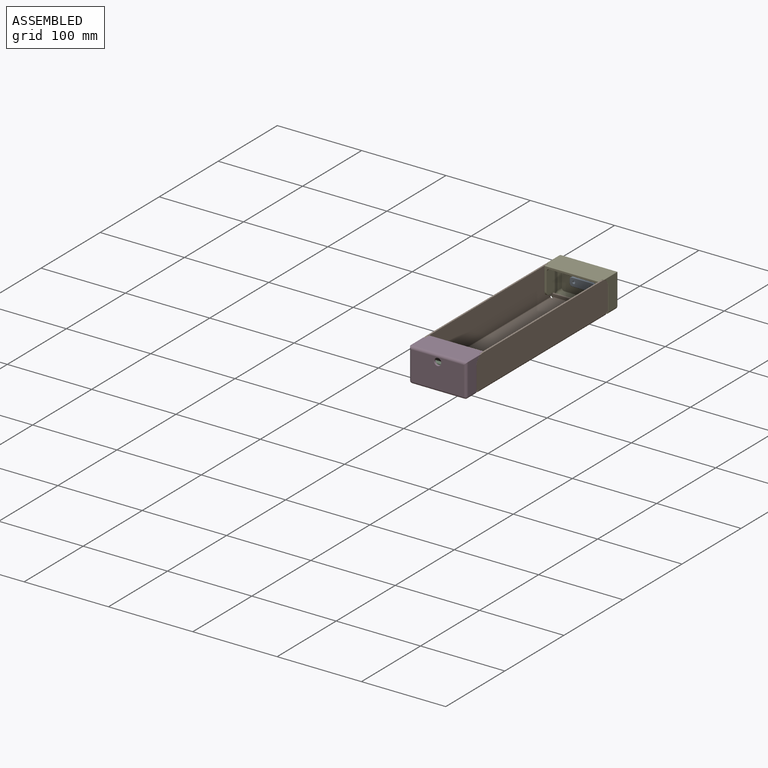
[diagram: assembled view]
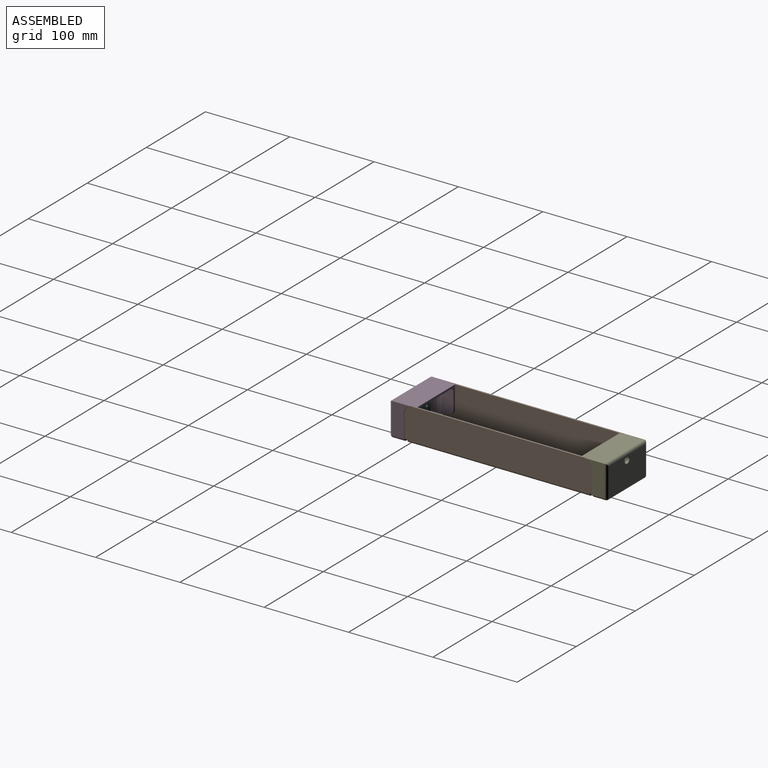
[diagram: assembled view, second angle]
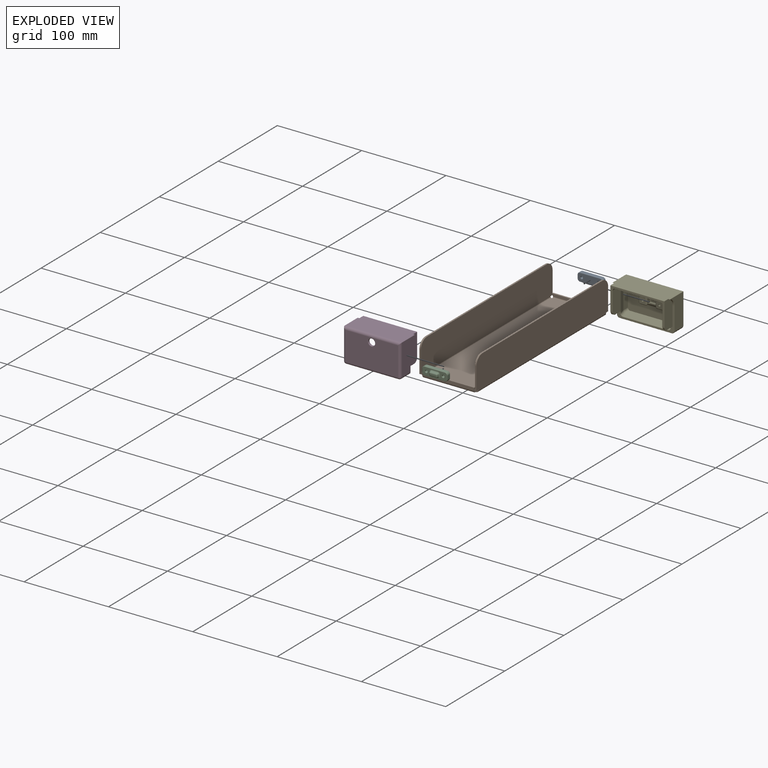
[diagram: exploded view]
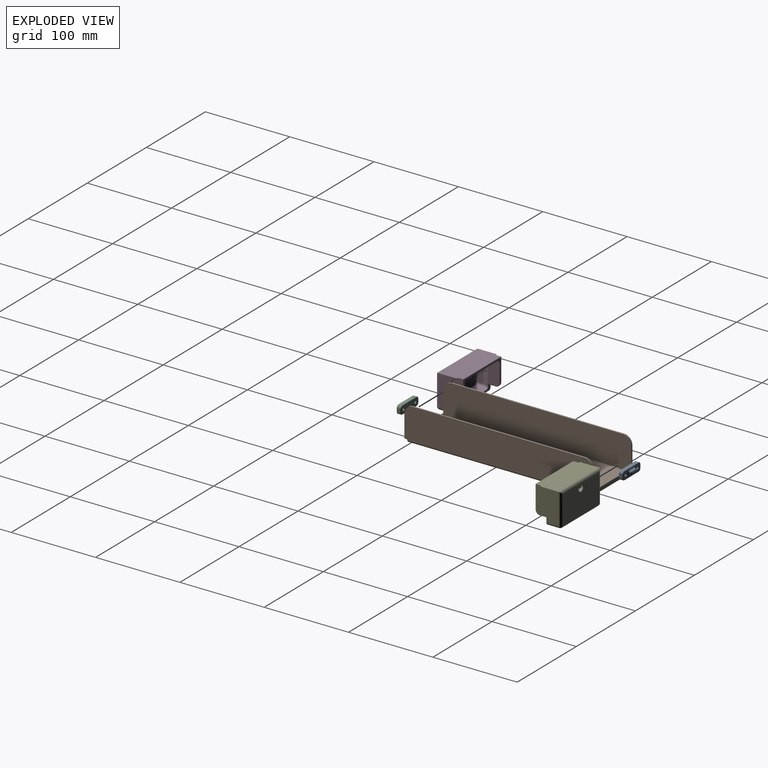
[diagram: exploded view, second angle]
ASSEMBLY  parts=5 mates=4
PART A: 49 faces, bbox 30.5x8x10.5 mm
  f0: plane 29x9mm, normal (0,1,0), area 145.5mm2, adj f9,f11,f24,f25,f26,f27,f28,f29
  f1: plane 4x4mm, normal (1,0,0), area 16mm2, adj f12,f13,f22,f29
  f2: plane 24x4mm, normal (0,0,1), area 96mm2, adj f13,f14,f18,f25
  f3: plane 4x4mm, normal (-1,0,0), area 16mm2, adj f14,f15,f17,f26
  f4: plane 24x4mm, normal (0,0,-1), area 96mm2, adj f12,f15,f21,f30
  f5: plane 29x9mm, normal (0,-1,0), area 235.3mm2, adj f8,f10,f16,f17,f18,f19,f20,f21
  f6: cylinder r=1.5mm len=4.4mm, axis (0,1,0), area 41.5mm2, adj f10,f11
  f7: cylinder r=1.5mm len=4.4mm, axis (0,1,0), area 41.5mm2, adj f8,f9
  f8: torus R=1.8mm, axis (0,-1,0), area 4.8mm2, adj f5,f7
  f9: torus R=1.8mm, axis (0,-1,0), area 4.8mm2, adj f0,f7
  f10: torus R=1.8mm, axis (0,-1,0), area 4.8mm2, adj f5,f6
  f11: torus R=1.8mm, axis (0,-1,0), area 4.8mm2, adj f0,f6
  f12: cylinder r=3mm len=4mm, axis (0,1,0), area 18.8mm2, adj f1,f4,f23,f31
  f13: cylinder r=3mm len=4mm, axis (0,-1,0), area 18.8mm2, adj f1,f2,f20,f27
  f14: cylinder r=3mm len=4mm, axis (0,1,0), area 18.8mm2, adj f2,f3,f16,f24
  f15: cylinder r=3mm len=4mm, axis (0,-1,0), area 18.8mm2, adj f3,f4,f19,f28
  f16: torus R=2.5mm, axis (0,-1,0), area 3.5mm2, adj f5,f14,f17,f18
  f17: cylinder r=0.5mm len=4mm, axis (0,0,1), area 3.1mm2, adj f3,f5,f16,f19
  f18: cylinder r=0.5mm len=24mm, axis (1,0,0), area 18.8mm2, adj f2,f5,f16,f20
  f19: torus R=2.5mm, axis (0,-1,0), area 3.5mm2, adj f5,f15,f17,f21
  f20: torus R=2.5mm, axis (0,-1,0), area 3.5mm2, adj f5,f13,f18,f22
  f21: cylinder r=0.5mm len=24mm, axis (-1,0,0), area 18.8mm2, adj f4,f5,f19,f23
  f22: cylinder r=0.5mm len=4mm, axis (0,0,-1), area 3.1mm2, adj f1,f5,f20,f23
  f23: torus R=2.5mm, axis (0,-1,0), area 3.5mm2, adj f5,f12,f21,f22
  f24: torus R=2.5mm, axis (0,-1,0), area 3.5mm2, adj f0,f14,f25,f26
  f25: cylinder r=0.5mm len=24mm, axis (-1,0,0), area 18.8mm2, adj f0,f2,f24,f27
  f26: cylinder r=0.5mm len=4mm, axis (0,0,-1), area 3.1mm2, adj f0,f3,f24,f28
  f27: torus R=2.5mm, axis (0,-1,0), area 3.5mm2, adj f0,f13,f25,f29
  f28: torus R=2.5mm, axis (0,-1,0), area 3.5mm2, adj f0,f15,f26,f30
  f29: cylinder r=0.5mm len=4mm, axis (0,0,1), area 3.1mm2, adj f0,f1,f27,f31
  f30: cylinder r=0.5mm len=24mm, axis (1,0,0), area 18.8mm2, adj f0,f4,f28,f31
  f31: torus R=2.5mm, axis (0,-1,0), area 3.5mm2, adj f0,f12,f29,f30
  f32: plane 7x1.5mm, normal (0,1,0), area 10.5mm2, adj f33,f37,f40,f45
  f33: cylinder r=1.5mm len=1.5mm, axis (0,0,-1), area 3.5mm2, adj f32,f34,f35,f36
  f34: sphere r=1.5mm, area 3.5mm2, adj f33,f37,f38
  f35: cylinder r=1.5mm len=1.5mm, axis (0,0,1), area 3.5mm2, adj f0,f33,f38,f39
  f36: sphere r=1.5mm, area 3.5mm2, adj f33,f39,f40
  f37: cylinder r=1.5mm len=7mm, axis (1,0,0), area 16.5mm2, adj f32,f34,f42,f43
  f38: torus R=3mm, axis (0,-1,0), area 7.6mm2, adj f0,f34,f35,f43
  f39: torus R=3mm, axis (0,-1,0), area 7.6mm2, adj f0,f35,f36,f44
  f40: cylinder r=1.5mm len=7mm, axis (-1,0,0), area 16.5mm2, adj f32,f36,f41,f44
  f41: sphere r=1.5mm, area 3.5mm2, adj f40,f45,f47
  f42: sphere r=1.5mm, area 3.5mm2, adj f37,f45,f46
  f43: cylinder r=1.5mm len=7mm, axis (-1,0,0), area 16.5mm2, adj f0,f37,f38,f46
  f44: cylinder r=1.5mm len=7mm, axis (1,0,0), area 16.5mm2, adj f0,f39,f40,f47
  f45: cylinder r=1.5mm len=1.5mm, axis (0,0,1), area 3.5mm2, adj f32,f41,f42,f48
  f46: torus R=3mm, axis (0,-1,0), area 7.6mm2, adj f0,f42,f43,f48
  f47: torus R=3mm, axis (0,-1,0), area 7.6mm2, adj f0,f41,f44,f48
  f48: cylinder r=1.5mm len=1.5mm, axis (0,0,-1), area 3.5mm2, adj f0,f45,f46,f47
PART B: 66 faces, bbox 67.7x223x40 mm
  f0: plane 217.4x62.1mm, normal (0,0,-1), area 13498.5mm2, adj f2,f3,f4,f5,f6,f7,f8,f9
  f1: plane 217.4x62.1mm, normal (0,0,1), area 13498.5mm2, adj f2,f3,f4,f5,f6,f7,f8,f9
  f2: plane 1.8x0.71mm, normal (0,1,0), area 1.3mm2, adj f0,f1,f3,f37
  f3: plane 1.8x0.71mm, normal (-1,0,0), area 1.3mm2, adj f0,f1,f2,f63
  f4: plane 1.8x0.71mm, normal (1,0,0), area 1.3mm2, adj f0,f1,f5,f62
  f5: plane 1.8x0.71mm, normal (0,1,0), area 1.3mm2, adj f0,f1,f4,f21
  f6: plane 1.8x0.71mm, normal (0,-1,0), area 1.3mm2, adj f0,f1,f7,f22
  f7: plane 1.8x0.71mm, normal (1,0,0), area 1.3mm2, adj f0,f1,f6,f50
  f8: plane 1.8x0.71mm, normal (-1,0,0), area 1.3mm2, adj f0,f1,f9,f49
  f9: plane 1.8x0.71mm, normal (0,-1,0), area 1.3mm2, adj f0,f1,f8,f36
  f10: plane 26.49x1.8mm, normal (0,1,0), area 47.7mm2, adj f12,f13,f16,f17
  f11: plane 26.49x1.8mm, normal (0,-1,0), area 47.7mm2, adj f12,f13,f15,f20
  f12: plane 223x37.2mm, normal (1,0,0), area 8247.7mm2, adj f10,f11,f14,f15,f16,f17,f18,f19
  f13: plane 223x37.2mm, normal (-1,0,0), area 8247.7mm2, adj f10,f11,f14,f15,f16,f17,f18,f19
  f14: plane 203x1.8mm, normal (0,0,1), area 365.4mm2, adj f12,f13,f15,f16
  f15: cylinder r=10mm len=10mm, axis (1,0,0), area 28.3mm2, adj f11,f12,f13,f14
  f16: cylinder r=10mm len=10mm, axis (-1,0,0), area 28.3mm2, adj f10,f12,f13,f14
  f17: plane 3.51x1.8mm, normal (0,0,-1), area 6.3mm2, adj f10,f12,f13,f18
  f18: plane 1.8x0.71mm, normal (0,1,0), area 1.3mm2, adj f12,f13,f17,f21
  f19: plane 1.8x0.71mm, normal (0,-1,0), area 1.3mm2, adj f12,f13,f20,f22
  f20: plane 3.51x1.8mm, normal (0,0,-1), area 6.3mm2, adj f11,f12,f13,f19
  f21: plane 2.8x2.8mm, normal (0,1,0), area 5.4mm2, adj f5,f18,f23,f24
  f22: plane 2.8x2.8mm, normal (0,-1,0), area 5.4mm2, adj f6,f19,f23,f24
  f23: cylinder r=2.8mm len=215.98mm, axis (0,1,0), area 949.9mm2, adj f0,f12,f21,f22
  f24: cylinder r=1mm len=215.98mm, axis (0,1,0), area 339.3mm2, adj f1,f13,f21,f22
  f25: plane 26.49x1.8mm, normal (0,-1,0), area 47.7mm2, adj f27,f28,f30,f32
  f26: plane 26.49x1.8mm, normal (0,1,0), area 47.7mm2, adj f27,f28,f31,f35
  f27: plane 223x37.2mm, normal (-1,0,0), area 8247.7mm2, adj f25,f26,f29,f30,f31,f32,f33,f34
  f28: plane 223x37.2mm, normal (1,0,0), area 8247.7mm2, adj f25,f26,f29,f30,f31,f32,f33,f34
  f29: plane 203x1.8mm, normal (0,0,1), area 365.4mm2, adj f27,f28,f30,f31
  f30: cylinder r=10mm len=10mm, axis (1,0,0), area 28.3mm2, adj f25,f27,f28,f29
  f31: cylinder r=10mm len=10mm, axis (-1,0,0), area 28.3mm2, adj f26,f27,f28,f29
  f32: plane 3.51x1.8mm, normal (0,0,-1), area 6.3mm2, adj f25,f27,f28,f33
  f33: plane 1.8x0.71mm, normal (0,-1,0), area 1.3mm2, adj f27,f28,f32,f36
  f34: plane 1.8x0.71mm, normal (0,1,0), area 1.3mm2, adj f27,f28,f35,f37
  f35: plane 3.51x1.8mm, normal (0,0,-1), area 6.3mm2, adj f26,f27,f28,f34
  f36: plane 2.8x2.8mm, normal (0,-1,0), area 5.4mm2, adj f9,f33,f38,f39
  f37: plane 2.8x2.8mm, normal (0,1,0), area 5.4mm2, adj f2,f34,f38,f39
  f38: cylinder r=2.8mm len=215.98mm, axis (0,-1,0), area 949.9mm2, adj f0,f27,f36,f37
  f39: cylinder r=1mm len=215.98mm, axis (0,-1,0), area 339.3mm2, adj f1,f28,f36,f37
  f40: plane 2.49x1.8mm, normal (-1,0,0), area 4.5mm2, adj f42,f43,f44,f48
  f41: plane 2.49x1.8mm, normal (1,0,0), area 4.5mm2, adj f42,f43,f44,f45
  f42: plane 62.1x3.2mm, normal (0,-1,0), area 197.7mm2, adj f40,f41,f44,f45,f46,f47,f48,f51
  f43: plane 62.1x3.2mm, normal (0,1,0), area 197.7mm2, adj f40,f41,f44,f45,f46,f47,f48,f52
  f44: plane 62.1x1.8mm, normal (0,0,1), area 111.8mm2, adj f40,f41,f42,f43
  f45: plane 1.8x0.71mm, normal (0,0,-1), area 1.3mm2, adj f41,f42,f43,f46
  f46: plane 1.8x0.71mm, normal (1,0,0), area 1.3mm2, adj f42,f43,f45,f50
  f47: plane 1.8x0.71mm, normal (-1,0,0), area 1.3mm2, adj f42,f43,f48,f49
  f48: plane 1.8x0.71mm, normal (0,0,-1), area 1.3mm2, adj f40,f42,f43,f47
  f49: plane 2.8x2.8mm, normal (-1,0,0), area 5.4mm2, adj f8,f47,f51,f52
  f50: plane 2.8x2.8mm, normal (1,0,0), area 5.4mm2, adj f7,f46,f51,f52
  f51: cylinder r=2.8mm len=60.68mm, axis (-1,0,0), area 266.9mm2, adj f0,f42,f49,f50
  f52: cylinder r=1mm len=60.68mm, axis (-1,0,0), area 95.3mm2, adj f1,f43,f49,f50
  f53: plane 2.49x1.8mm, normal (1,0,0), area 4.5mm2, adj f55,f56,f57,f61
  f54: plane 2.49x1.8mm, normal (-1,0,0), area 4.5mm2, adj f55,f56,f57,f58
  f55: plane 62.1x3.2mm, normal (0,1,0), area 197.7mm2, adj f53,f54,f57,f58,f59,f60,f61,f64
  f56: plane 62.1x3.2mm, normal (0,-1,0), area 197.7mm2, adj f53,f54,f57,f58,f59,f60,f61,f65
  f57: plane 62.1x1.8mm, normal (0,0,1), area 111.8mm2, adj f53,f54,f55,f56
  f58: plane 1.8x0.71mm, normal (0,0,-1), area 1.3mm2, adj f54,f55,f56,f59
  f59: plane 1.8x0.71mm, normal (-1,0,0), area 1.3mm2, adj f55,f56,f58,f63
  f60: plane 1.8x0.71mm, normal (1,0,0), area 1.3mm2, adj f55,f56,f61,f62
  f61: plane 1.8x0.71mm, normal (0,0,-1), area 1.3mm2, adj f53,f55,f56,f60
  f62: plane 2.8x2.8mm, normal (1,0,0), area 5.4mm2, adj f4,f60,f64,f65
  f63: plane 2.8x2.8mm, normal (-1,0,0), area 5.4mm2, adj f3,f59,f64,f65
  f64: cylinder r=2.8mm len=60.68mm, axis (1,0,0), area 266.9mm2, adj f0,f55,f62,f63
  f65: cylinder r=1mm len=60.68mm, axis (1,0,0), area 95.3mm2, adj f1,f56,f62,f63
PART C: same geometry as A
PART D: 176 faces, bbox 69.3x32.2x41.5 mm
  f0: plane 7x0.54mm, normal (0,1,0), area 3.8mm2, adj f118,f119,f138,f150
  f1: plane 6.34x2.5mm, normal (0,0,1), area 15.2mm2, adj f98,f104,f151,f152,f171
  f2: plane 6.34x2.5mm, normal (0,0,-1), area 15.2mm2, adj f94,f96,f145,f147,f172
  f3: plane 7x7mm, normal (0,1,0), area 43.9mm2, adj f112,f168,f169,f170,f171,f172,f173,f174
  f4: plane 63x35mm, normal (0,1,0), area 1672.8mm2, adj f11,f12,f13,f20,f54,f78,f80,f82
  f5: bspline ~0.5x0.5mm, area 0mm2, adj f38,f39,f77
  f6: bspline ~0.5x0.5mm, area 0mm2, adj f37,f38,f75
  f7: plane 67.4x29.7mm, normal (0,1,0), area 246.7mm2, adj f9,f14,f23,f24,f26,f28,f42,f52
  f8: plane 63.6x27.3mm, normal (0,1,0), area 239.4mm2, adj f33,f34,f37,f38,f39,f45,f48,f50
  f9: plane 32.1x13.8mm, normal (-1,0,0), area 418.4mm2, adj f7,f28,f29,f42,f43,f44,f45
  f10: plane 62x14.2mm, normal (0,0,-1), area 880.4mm2, adj f56,f58,f60,f67
  f11: plane 57x28.8mm, normal (0,0,-1), area 1616.4mm2, adj f4,f21,f22,f38,f74,f76,f82,f83
  f12: plane 29x7.5mm, normal (-1,0,0), area 217.5mm2, adj f4,f22,f78,f82
  f13: plane 57x14.7mm, normal (0,0,1), area 822.5mm2, adj f4,f78,f79,f80,f81,f86
  f14: plane 32.1x13.8mm, normal (1,0,0), area 418.4mm2, adj f7,f26,f27,f47,f50,f51,f52
  f15: plane 67.4x28.3mm, normal (0,0,1), area 1882.2mm2, adj f27,f29,f31,f44,f47,f48,f62,f72
  f16: plane 26.8x13.8mm, normal (1,0,0), area 364.9mm2, adj f21,f35,f36,f37,f74
  f17: plane 26.8x13.8mm, normal (-1,0,0), area 364.9mm2, adj f22,f39,f40,f41,f76
  f18: plane 36.7x21.04mm, normal (-1,0,0), area 539.1mm2, adj f32,f60,f62,f64,f65
  f19: plane 36.7x21.04mm, normal (1,0,0), area 539.1mm2, adj f30,f56,f69,f70,f72
  f20: plane 29x7.5mm, normal (1,0,0), area 217.5mm2, adj f4,f21,f80,f83
  f21: plane 32.18x18.93mm, normal (0.97,-0.26,0), area 247.6mm2, adj f11,f16,f20,f35,f74,f81,f83,f88
  f22: plane 32.18x18.93mm, normal (-0.97,-0.26,0), area 247.6mm2, adj f11,f12,f17,f41,f76,f79,f82,f84
  f23: plane 9.07x2.1mm, normal (0,0,-1), area 18.9mm2, adj f7,f33,f41,f52,f84
  f24: plane 9.07x2.1mm, normal (0,0,-1), area 18.9mm2, adj f7,f34,f35,f42,f88
  f25: plane 62x34mm, normal (0,-1,0), area 2044.4mm2, adj f30,f31,f32,f55,f58
  f26: cylinder r=10mm len=9.61mm, axis (-1,0,0), area 21.9mm2, adj f7,f14,f27,f70
  f27: cylinder r=0.2mm len=1.9mm, axis (-1,0,0), area 1mm2, adj f14,f15,f26,f47,f71
  f28: cylinder r=10mm len=9.61mm, axis (1,0,0), area 21.9mm2, adj f7,f9,f29,f64
  f29: cylinder r=0.2mm len=1.9mm, axis (1,0,0), area 1mm2, adj f9,f15,f28,f44,f63
  f30: cylinder r=3mm len=36.7mm, axis (0,0,-1), area 166.6mm2, adj f19,f25,f57,f73
  f31: cylinder r=3mm len=67.4mm, axis (1,0,0), area 304.9mm2, adj f15,f25,f61,f73
  f32: cylinder r=3mm len=36.7mm, axis (0,0,1), area 166.6mm2, adj f18,f25,f59,f61
  f33: cylinder r=5mm len=5mm, axis (-1,0,0), area 16.5mm2, adj f8,f23,f40,f51
  f34: cylinder r=5mm len=5mm, axis (-1,0,0), area 16.5mm2, adj f8,f24,f36,f43
  f35: cylinder r=0.2mm len=9.38mm, axis (0,1,0), area 2.9mm2, adj f16,f21,f24,f36,f88
  f36: torus R=4.8mm, axis (1,0,0), area 2.4mm2, adj f16,f34,f35,f37
  f37: cylinder r=0.2mm len=25.2mm, axis (0,0,1), area 7.3mm2, adj f6,f8,f16,f36,f75
  f38: cylinder r=0.2mm len=59.4mm, axis (1,0,0), area 17.4mm2, adj f5,f6,f8,f11,f75,f77
  f39: cylinder r=0.2mm len=25.2mm, axis (0,0,-1), area 7.3mm2, adj f5,f8,f17,f40,f77
  f40: torus R=4.8mm, axis (-1,0,0), area 2.4mm2, adj f17,f33,f39,f41
  f41: cylinder r=0.2mm len=9.38mm, axis (0,1,0), area 2.9mm2, adj f17,f22,f23,f40,f84
  f42: cylinder r=0.2mm len=9mm, axis (0,-1,0), area 2.8mm2, adj f7,f9,f24,f43
  f43: torus R=4.8mm, axis (-1,0,0), area 2.4mm2, adj f9,f34,f42,f45
  f44: cylinder r=0.2mm len=6.63mm, axis (0,-1,0), area 2.1mm2, adj f9,f15,f29,f46
  f45: cylinder r=0.2mm len=27.3mm, axis (0,0,1), area 8.6mm2, adj f8,f9,f43,f46
  f46: sphere r=0.2mm, area 0.1mm2, adj f44,f45,f48
  f47: cylinder r=0.2mm len=6.63mm, axis (0,-1,0), area 2.1mm2, adj f14,f15,f27,f49
  f48: cylinder r=0.2mm len=63.6mm, axis (1,0,0), area 20mm2, adj f8,f15,f46,f49
  f49: sphere r=0.2mm, area 0mm2, adj f47,f48,f50
  f50: cylinder r=0.2mm len=27.3mm, axis (0,0,-1), area 8.6mm2, adj f8,f14,f49,f51
  f51: torus R=4.8mm, axis (1,0,0), area 2.4mm2, adj f14,f33,f50,f52
  f52: cylinder r=0.2mm len=9mm, axis (0,-1,0), area 2.8mm2, adj f7,f14,f23,f51
  f53: cylinder r=4mm len=8mm, axis (0,-1,0), area 37.7mm2, adj f54,f55
  f54: torus R=4.5mm, axis (0,-1,0), area 20.4mm2, adj f4,f53,f106
  f55: torus R=4.5mm, axis (0,-1,0), area 20.6mm2, adj f25,f53
  f56: cylinder r=3mm len=14.2mm, axis (0,1,0), area 66.9mm2, adj f10,f19,f57,f68
  f57: sphere r=3mm, area 14.1mm2, adj f30,f56,f58
  f58: cylinder r=3mm len=62mm, axis (-1,0,0), area 292.2mm2, adj f10,f25,f57,f59
  f59: sphere r=3mm, area 14.1mm2, adj f32,f58,f60
  f60: cylinder r=3mm len=14.2mm, axis (0,1,0), area 66.9mm2, adj f10,f18,f59,f66
  f61: bspline ~3.11x3mm, area 1mm2, adj f31,f32,f62
  f62: cylinder r=0.3mm len=21.67mm, axis (0,1,0), area 10.1mm2, adj f15,f18,f61,f63
  f63: bspline ~2.05x0.89mm, area 0.2mm2, adj f29,f62,f64
  f64: torus R=10.3mm, axis (-1,0,0), area 6mm2, adj f18,f28,f63,f65
  f65: cylinder r=0.3mm len=27mm, axis (0,0,-1), area 12.7mm2, adj f7,f18,f64,f66
  f66: torus R=2.7mm, axis (0,-1,0), area 2.1mm2, adj f7,f60,f65,f67
  f67: cylinder r=0.3mm len=62mm, axis (1,0,0), area 29.2mm2, adj f7,f10,f66,f68
  f68: torus R=2.7mm, axis (0,-1,0), area 2.1mm2, adj f7,f56,f67,f69
  f69: cylinder r=0.3mm len=27mm, axis (0,0,1), area 12.7mm2, adj f7,f19,f68,f70
  f70: torus R=10.3mm, axis (1,0,0), area 6mm2, adj f19,f26,f69,f71
  f71: bspline ~2.05x0.89mm, area 0.2mm2, adj f27,f70,f72
  f72: cylinder r=0.3mm len=21.67mm, axis (0,1,0), area 10.1mm2, adj f15,f19,f71,f73
  f73: bspline ~3.11x3mm, area 1mm2, adj f30,f31,f72
  f74: cylinder r=3mm len=13.8mm, axis (0,-1,0), area 45.8mm2, adj f11,f16,f21,f75
  f75: bspline ~3.19x3.19mm, area 2.7mm2, adj f6,f37,f38,f74
  f76: cylinder r=3mm len=13.8mm, axis (0,-1,0), area 45.8mm2, adj f11,f17,f22,f77
  f77: bspline ~3.19x3.19mm, area 2.7mm2, adj f5,f38,f39,f76
  f78: cylinder r=3mm len=7.5mm, axis (0,-1,0), area 34.4mm2, adj f4,f12,f13,f79
  f79: cylinder r=3mm len=8.75mm, axis (0.26,-0.97,0), area 35.9mm2, adj f13,f22,f78,f85
  f80: cylinder r=3mm len=7.5mm, axis (0,-1,0), area 34.4mm2, adj f4,f13,f20,f81
  f81: cylinder r=3mm len=8.75mm, axis (0.26,0.97,0), area 35.9mm2, adj f13,f21,f80,f87
  f82: cylinder r=3mm len=18.75mm, axis (0,1,0), area 54.6mm2, adj f4,f11,f12,f22
  f83: cylinder r=3mm len=18.75mm, axis (0,1,0), area 54.6mm2, adj f4,f11,f20,f21
  f84: cylinder r=0.3mm len=2.03mm, axis (0,0,-1), area 1.1mm2, adj f7,f22,f23,f41,f85
  f85: bspline ~3.56x3.3mm, area 2.6mm2, adj f7,f79,f84,f86
  f86: cylinder r=0.3mm len=52.95mm, axis (-1,0,0), area 25mm2, adj f7,f13,f85,f87
  f87: bspline ~3.42x3.3mm, area 2.6mm2, adj f7,f81,f86,f88
  f88: cylinder r=0.3mm len=2.03mm, axis (0,0,1), area 1.1mm2, adj f7,f21,f24,f35,f87
  f89: plane 6.34x2.5mm, normal (0,0,1), area 15.2mm2, adj f103,f107,f153,f155,f160
  f90: plane 6x2.5mm, normal (-1,0,0), area 15mm2, adj f97,f102,f103,f163
  f91: plane 6.34x2.5mm, normal (0,0,-1), area 15.2mm2, adj f96,f97,f144,f146,f167
  f92: plane 6x2.5mm, normal (1,0,0), area 15mm2, adj f94,f98,f99,f175
  f93: plane 7x7mm, normal (0,1,0), area 43.9mm2, adj f114,f160,f161,f162,f163,f164,f165,f166
  f94: cylinder r=2mm len=2.5mm, axis (0,1,0), area 7.9mm2, adj f2,f92,f95,f174
  f95: torus R=4mm, axis (0,-1,0), area 13.5mm2, adj f4,f94,f96,f99
  f96: cylinder r=2mm len=26mm, axis (1,0,0), area 71mm2, adj f2,f4,f91,f95,f100,f148,f149,f150
  f97: cylinder r=2mm len=2.5mm, axis (0,-1,0), area 7.9mm2, adj f90,f91,f100,f165
  f98: cylinder r=2mm len=2.5mm, axis (0,-1,0), area 7.9mm2, adj f1,f92,f101,f173
  f99: cylinder r=2mm len=6mm, axis (0,0,1), area 18.8mm2, adj f4,f92,f95,f101
  f100: torus R=4mm, axis (0,-1,0), area 13.5mm2, adj f4,f96,f97,f102
  f101: torus R=4mm, axis (0,-1,0), area 13.5mm2, adj f4,f98,f99,f104
  f102: cylinder r=2mm len=6mm, axis (0,0,-1), area 18.8mm2, adj f4,f90,f100,f105
  f103: cylinder r=2mm len=2.5mm, axis (0,1,0), area 7.9mm2, adj f89,f90,f105,f161
  f104: cylinder r=2mm len=10.94mm, axis (-1,0,0), area 31.2mm2, adj f1,f4,f101,f106,f154,f156
  f105: torus R=4mm, axis (0,-1,0), area 13.5mm2, adj f4,f102,f103,f107
  f106: bspline ~6.41x2.46mm, area 7.9mm2, adj f54,f104,f107,f158
  f107: cylinder r=2mm len=10.94mm, axis (-1,0,0), area 31.2mm2, adj f4,f89,f105,f106,f157,f159
  f108: plane 6.32x3.32mm, normal (-1,0,0), area 15.2mm2, adj f121,f124,f125,f134,f135,f145,f151,f168
  f109: plane 6.33x3.33mm, normal (1,0,0), area 15.2mm2, adj f120,f132,f133,f142,f143,f144,f153,f164
  f110: plane 7x0.54mm, normal (0,1,0), area 3.7mm2, adj f122,f123,f128,f156,f158,f159
  f111: cone r=0mm half-angle=59deg, axis (0,1,0), area 5.7mm2, adj f112
  f112: cylinder r=1.25mm len=6.5mm, axis (0,1,0), area 51.1mm2, adj f3,f111
  f113: cone r=0mm half-angle=59deg, axis (0,1,0), area 5.7mm2, adj f114
  f114: cylinder r=1.25mm len=6.5mm, axis (0,1,0), area 51.1mm2, adj f93,f113
  f115: plane 9x1.27mm, normal (0,0,1), area 8.7mm2, adj f135,f136,f137,f138,f139,f140,f141,f143
  f116: plane 9x1.27mm, normal (0,0,-1), area 8.7mm2, adj f125,f126,f127,f128,f129,f130,f131,f133
  f117: plane 7x4mm, normal (0,1,0), area 28mm2, adj f120,f121,f129,f139
  f118: cylinder r=1.5mm len=1.36mm, axis (0,0,-1), area 0.5mm2, adj f0,f136,f149
  f119: cylinder r=1.5mm len=1.36mm, axis (0,0,1), area 0.5mm2, adj f0,f140,f148
  f120: cylinder r=1.5mm len=4mm, axis (0,0,1), area 9.4mm2, adj f109,f117,f131,f141
  f121: cylinder r=1.5mm len=4mm, axis (0,0,-1), area 9.4mm2, adj f108,f117,f127,f137
  f122: cylinder r=1.5mm len=1.36mm, axis (0,0,-1), area 0.5mm2, adj f110,f126,f154
  f123: cylinder r=1.5mm len=1.36mm, axis (0,0,1), area 0.5mm2, adj f110,f130,f157
  f124: bspline ~2x1mm, area 0.5mm2, adj f108,f125,f126
  f125: cylinder r=0.5mm len=0.5mm, axis (0,-1,0), area 0.2mm2, adj f108,f116,f124,f127
  f126: torus R=2mm, axis (0,0,1), area 1.3mm2, adj f116,f122,f124,f128,f152
  f127: torus R=1mm, axis (0,0,1), area 1.6mm2, adj f116,f121,f125,f129
  f128: cylinder r=0.5mm len=7mm, axis (-1,0,0), area 5.5mm2, adj f110,f116,f126,f130
  f129: cylinder r=0.5mm len=7mm, axis (1,0,0), area 5.5mm2, adj f116,f117,f127,f131
  f130: torus R=2mm, axis (0,0,1), area 1.3mm2, adj f116,f123,f128,f132,f155
  f131: torus R=1mm, axis (0,0,1), area 1.6mm2, adj f116,f120,f129,f133
  f132: bspline ~2x1mm, area 0.5mm2, adj f109,f130,f133
  f133: cylinder r=0.5mm len=0.5mm, axis (0,1,0), area 0.2mm2, adj f109,f116,f131,f132
  f134: bspline ~2x1mm, area 0.5mm2, adj f108,f135,f136
  f135: cylinder r=0.5mm len=0.5mm, axis (0,1,0), area 0.2mm2, adj f108,f115,f134,f137
  f136: torus R=2mm, axis (0,0,1), area 1.3mm2, adj f115,f118,f134,f138,f147
  f137: torus R=1mm, axis (0,0,1), area 1.6mm2, adj f115,f121,f135,f139
  f138: cylinder r=0.5mm len=7mm, axis (1,0,0), area 5.5mm2, adj f0,f115,f136,f140
  f139: cylinder r=0.5mm len=7mm, axis (-1,0,0), area 5.5mm2, adj f115,f117,f137,f141
  f140: torus R=2mm, axis (0,0,1), area 1.3mm2, adj f115,f119,f138,f142,f146
  f141: torus R=1mm, axis (0,0,1), area 1.6mm2, adj f115,f120,f139,f143
  f142: bspline ~2x1mm, area 0.5mm2, adj f109,f140,f143
  f143: cylinder r=0.5mm len=0.5mm, axis (0,-1,0), area 0.2mm2, adj f109,f115,f141,f142
  f144: cylinder r=2mm len=2mm, axis (0,1,0), area 3.1mm2, adj f91,f109,f146,f166
  f145: cylinder r=2mm len=2mm, axis (0,-1,0), area 3.1mm2, adj f2,f108,f147,f170
  f146: torus R=3.5mm, axis (0,0,-1), area 3.1mm2, adj f91,f140,f144,f148
  f147: torus R=3.5mm, axis (0,0,-1), area 3.1mm2, adj f2,f136,f145,f149
  f148: bspline ~3.47x2.27mm, area 5.7mm2, adj f96,f119,f146,f150
  f149: bspline ~3.47x2.27mm, area 5.7mm2, adj f96,f118,f147,f150
  f150: cylinder r=2mm len=7mm, axis (1,0,0), area 14.7mm2, adj f0,f96,f148,f149
  f151: cylinder r=2mm len=2mm, axis (0,1,0), area 3.1mm2, adj f1,f108,f152,f169
  f152: torus R=3.5mm, axis (0,0,-1), area 3.1mm2, adj f1,f126,f151,f154
  f153: cylinder r=2mm len=2mm, axis (0,-1,0), area 3.1mm2, adj f89,f109,f155,f162
  f154: bspline ~3.47x2.27mm, area 5.7mm2, adj f104,f122,f152,f156
  f155: torus R=3.5mm, axis (0,0,-1), area 3.1mm2, adj f89,f130,f153,f157
  f156: cylinder r=2mm len=1.73mm, axis (-1,0,0), area 3mm2, adj f104,f110,f154,f158
  f157: bspline ~3.47x2.27mm, area 5.7mm2, adj f107,f123,f155,f159
  f158: bspline ~4.59x1.76mm, area 8.7mm2, adj f106,f110,f156,f159
  f159: cylinder r=2mm len=1.73mm, axis (-1,0,0), area 3mm2, adj f107,f110,f157,f158
  f160: cylinder r=1.5mm len=6mm, axis (1,0,0), area 14.1mm2, adj f89,f93,f161,f162
  f161: torus R=0.5mm, axis (0,-1,0), area 5.4mm2, adj f93,f103,f160,f163
  f162: torus R=0.5mm, axis (0,-1,0), area 5.4mm2, adj f93,f153,f160,f164
  f163: cylinder r=1.5mm len=6mm, axis (0,0,1), area 14.1mm2, adj f90,f93,f161,f165
  f164: cylinder r=1.5mm len=6mm, axis (0,0,1), area 14.1mm2, adj f93,f109,f162,f166
  f165: torus R=0.5mm, axis (0,-1,0), area 5.4mm2, adj f93,f97,f163,f167
  f166: torus R=0.5mm, axis (0,-1,0), area 5.4mm2, adj f93,f144,f164,f167
  f167: cylinder r=1.5mm len=6mm, axis (-1,0,0), area 14.1mm2, adj f91,f93,f165,f166
  f168: cylinder r=1.5mm len=6mm, axis (0,0,-1), area 14.1mm2, adj f3,f108,f169,f170
  f169: torus R=0.5mm, axis (0,-1,0), area 5.4mm2, adj f3,f151,f168,f171
  f170: torus R=0.5mm, axis (0,-1,0), area 5.4mm2, adj f3,f145,f168,f172
  f171: cylinder r=1.5mm len=6mm, axis (1,0,0), area 14.1mm2, adj f1,f3,f169,f173
  f172: cylinder r=1.5mm len=6mm, axis (-1,0,0), area 14.1mm2, adj f2,f3,f170,f174
  f173: torus R=0.5mm, axis (0,-1,0), area 5.4mm2, adj f3,f98,f171,f175
  f174: torus R=0.5mm, axis (0,-1,0), area 5.4mm2, adj f3,f94,f172,f175
  f175: cylinder r=1.5mm len=6mm, axis (0,0,-1), area 14.1mm2, adj f3,f92,f173,f174
PART E: same geometry as D
PLACE A t=(-96.09,230.67,21.35)mm
PLACE B t=(-13.25,-37.31,32.94)mm
PLACE C rot(axis=(0,0,1),180deg) t=(63.18,-10.63,21.35)mm
PLACE D t=(-15.63,-1.63,21.71)mm
PLACE E rot(axis=(0,0,1),180deg) t=(-17.27,221.37,21.71)mm
MATE planar A.f7 <-> E.f113  axis (0,-1,0) through (-6.45,230.37,13.94)mm
MATE planar C.f7 <-> D.f113  axis (0,-1,0) through (-26.45,-10.63,13.94)mm
MATE cylindrical E.f26 <-> B.f16  axis (-1,0,0) through (-48.45,211.37,22.94)mm
MATE cylindrical B.f15 <-> D.f26  axis (1,0,0) through (-48.45,8.37,22.94)mm
